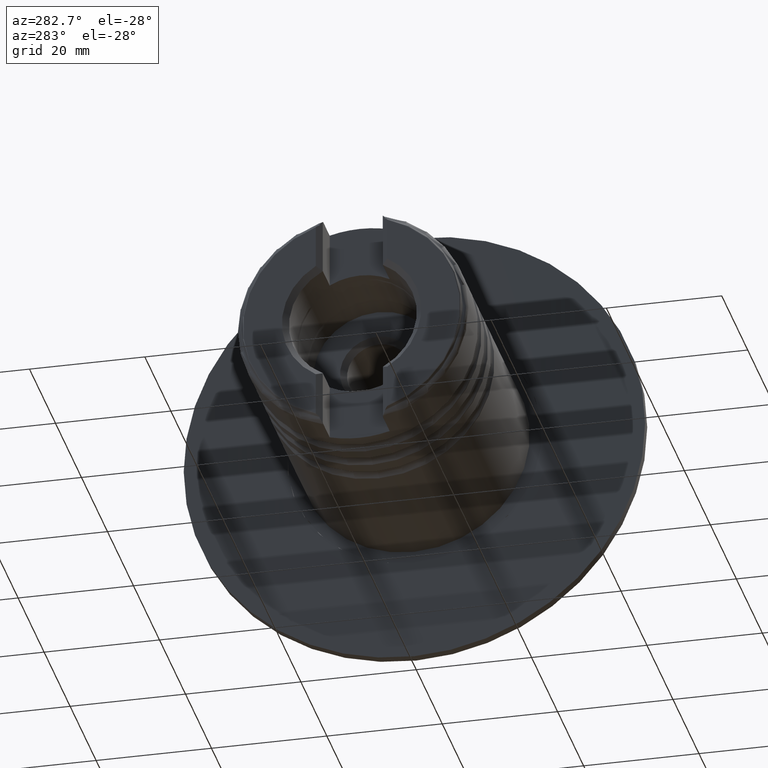
[diagram: clean part render]
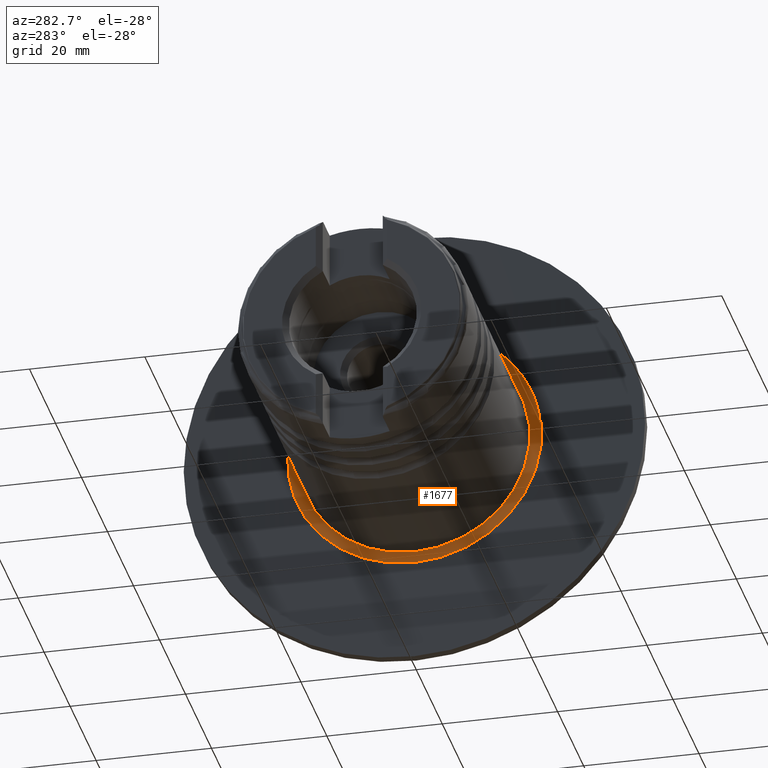
[diagram: same view with one face highlighted and labeled with its STEP entity id]
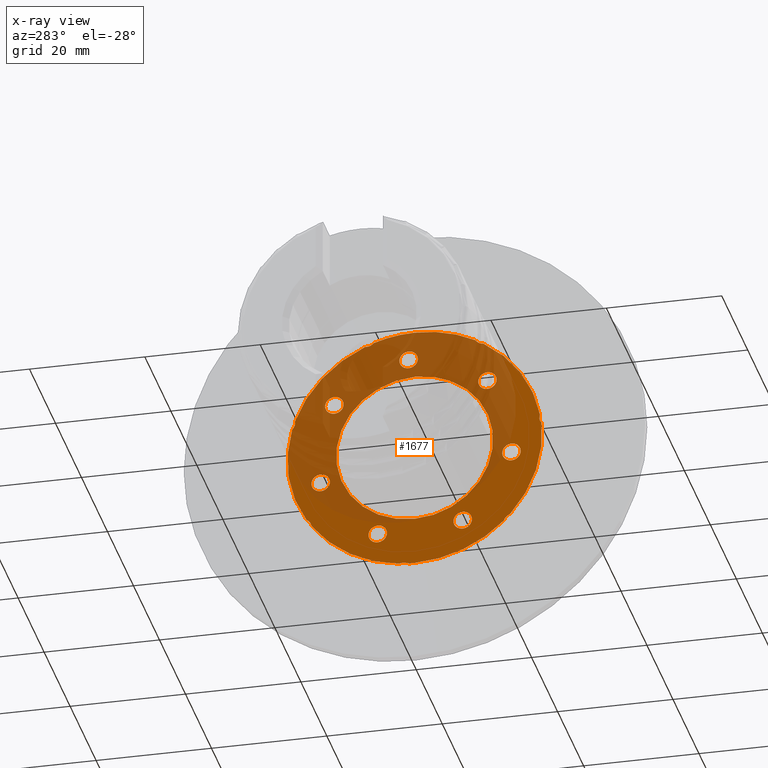
[diagram: x-ray of the same camera — body ghosted, the highlighted face saturated]
A machine part, auxiliary view. The second image highlights one B-rep face of the part: STEP entity #1677.
The next image is the same camera in x-ray: the body ghosted, the highlighted face saturated — about 56% of this face is hidden behind the body in this view.
In plain terms, the highlighted planar face has unit normal (-1, 0, 0).
Its self-contained STEP definition (entity closure, byte-faithful):
#3 = AXIS2_PLACEMENT_3D ( 'NONE', #5247, #3607, #2724 ) ;
#8 = DIRECTION ( 'NONE',  ( -7.893543919357625000E-16, -1.000000000000000000, -1.505845301538993022E-14 ) ) ;
#14 = ORIENTED_EDGE ( 'NONE', *, *, #2405, .F. ) ;
#55 = CARTESIAN_POINT ( 'NONE',  ( -1.200000000000029265, -19.94433317175150933, -20.84568775660764217 ) ) ;
#58 = CIRCLE ( 'NONE', #3820, 22.05936522491092688 ) ;
#61 = CARTESIAN_POINT ( 'NONE',  ( -1.200000000000004841, -8.315805018857782116, -14.82725149474236837 ) ) ;
#77 = ORIENTED_EDGE ( 'NONE', *, *, #725, .T. ) ;
#78 = ORIENTED_EDGE ( 'NONE', *, *, #5464, .T. ) ;
#82 = EDGE_CURVE ( 'NONE', #2205, #5146, #1912, .T. ) ;
#88 = CARTESIAN_POINT ( 'NONE',  ( -1.200000000000004841, -16.77723164056424565, -2.743081930757838460 ) ) ;
#93 = CARTESIAN_POINT ( 'NONE',  ( -1.200000000000022160, -11.78126373550882455, 18.60451648352043108 ) ) ;
#102 = ORIENTED_EDGE ( 'NONE', *, *, #82, .T. ) ;
#144 = DIRECTION ( 'NONE',  ( -1.000000000000000000, 0.0000000000000000000, 0.0000000000000000000 ) ) ;
#149 = DIRECTION ( 'NONE',  ( -7.863886645377447545E-16, -1.000000000000000000, 0.0000000000000000000 ) ) ;
#150 = CARTESIAN_POINT ( 'NONE',  ( -1.200000000000004841, -14.16494530326002987, 11.05065078143131885 ) ) ;
#157 = CARTESIAN_POINT ( 'NONE',  ( -1.200000000000006617, 8.177388263898873078, 21.59005143999080190 ) ) ;
#159 = ORIENTED_EDGE ( 'NONE', *, *, #577, .T. ) ;
#163 = EDGE_LOOP ( 'NONE', ( #2230, #4908 ) ) ;
#182 = EDGE_CURVE ( 'NONE', #1487, #1789, #207, .T. ) ;
#196 = DIRECTION ( 'NONE',  ( -1.000000000000000000, 7.861527457316623400E-16, -0.0000000000000000000 ) ) ;
#207 = CIRCLE ( 'NONE', #5340, 1.599999999999997868 ) ;
#227 = ORIENTED_EDGE ( 'NONE', *, *, #1449, .T. ) ;
#242 = AXIS2_PLACEMENT_3D ( 'NONE', #4059, #1520, #272 ) ;
#243 = DIRECTION ( 'NONE',  ( -7.863886645377447545E-16, -1.000000000000000000, 0.0000000000000000000 ) ) ;
#245 = FACE_BOUND ( 'NONE', #2635, .T. ) ;
#246 = CARTESIAN_POINT ( 'NONE',  ( -1.200000000000013500, 0.0000000000000000000, 0.0000000000000000000 ) ) ;
#255 = DIRECTION ( 'NONE',  ( 0.0000000000000000000, -0.9749279121818226201, -0.2225209339563181121 ) ) ;
#267 = VERTEX_POINT ( 'NONE', #980 ) ;
#271 = ORIENTED_EDGE ( 'NONE', *, *, #2592, .T. ) ;
#272 = DIRECTION ( 'NONE',  ( -7.863886645377447545E-16, -1.000000000000000000, 0.0000000000000000000 ) ) ;
#275 = AXIS2_PLACEMENT_3D ( 'NONE', #2613, #3457, #929 ) ;
#347 = CARTESIAN_POINT ( 'NONE',  ( -1.200000000000026601, -16.58864136329679084, -14.54072115976124557 ) ) ;
#357 = CIRCLE ( 'NONE', #3, 1.599999999999997202 ) ;
#360 = DIRECTION ( 'NONE',  ( 0.0000000000000000000, 0.4338837391175651148, -0.9009688679024157043 ) ) ;
#370 = EDGE_CURVE ( 'NONE', #3175, #1274, #3159, .T. ) ;
#380 = CIRCLE ( 'NONE', #5115, 1.250000000000004885 ) ;
#391 = CARTESIAN_POINT ( 'NONE',  ( -1.200000000000025269, -16.05434978265445878, -14.85558754599113307 ) ) ;
#392 = ORIENTED_EDGE ( 'NONE', *, *, #3710, .T. ) ;
#395 = VERTEX_POINT ( 'NONE', #3847 ) ;
#402 = VERTEX_POINT ( 'NONE', #2919 ) ;
#406 = DIRECTION ( 'NONE',  ( 0.0000000000000000000, -0.7818314824680312469, 0.6234898018587315960 ) ) ;
#414 = DIRECTION ( 'NONE',  ( 0.0000000000000000000, 0.0000000000000000000, 1.000000000000000000 ) ) ;
#484 = ORIENTED_EDGE ( 'NONE', *, *, #5456, .T. ) ;
#486 = DIRECTION ( 'NONE',  ( 1.000000000000000000, -7.861527457316623400E-16, 0.0000000000000000000 ) ) ;
#491 = VERTEX_POINT ( 'NONE', #2167 ) ;
#511 = DIRECTION ( 'NONE',  ( 1.000000000000000000, -7.861527457316623400E-16, 0.0000000000000000000 ) ) ;
#526 = VERTEX_POINT ( 'NONE', #4846 ) ;
#577 = EDGE_CURVE ( 'NONE', #4039, #1967, #5058, .T. ) ;
#637 = VERTEX_POINT ( 'NONE', #3233 ) ;
#644 = CARTESIAN_POINT ( 'NONE',  ( -1.200000000000021494, -10.91069804274972732, 18.95751293024381212 ) ) ;
#664 = CARTESIAN_POINT ( 'NONE',  ( -1.200000000000004841, 4.847707734066346141, -15.39016476804509281 ) ) ;
#670 = AXIS2_PLACEMENT_3D ( 'NONE', #1950, #1528, #3576 ) ;
#688 = VERTEX_POINT ( 'NONE', #4580 ) ;
#701 = AXIS2_PLACEMENT_3D ( 'NONE', #2146, #3375, #406 ) ;
#713 = CIRCLE ( 'NONE', #275, 1.250000000000004663 ) ;
#717 = VERTEX_POINT ( 'NONE', #93 ) ;
#725 = EDGE_CURVE ( 'NONE', #5335, #950, #4809, .T. ) ;
#733 = DIRECTION ( 'NONE',  ( 1.000000000000000000, -7.861527457316623400E-16, 0.0000000000000000000 ) ) ;
#751 = ORIENTED_EDGE ( 'NONE', *, *, #4022, .F. ) ;
#752 = ORIENTED_EDGE ( 'NONE', *, *, #3027, .T. ) ;
#769 = CARTESIAN_POINT ( 'NONE',  ( -1.200000000000013500, 0.0000000000000000000, 0.0000000000000000000 ) ) ;
#797 = ORIENTED_EDGE ( 'NONE', *, *, #3092, .T. ) ;
#823 = VERTEX_POINT ( 'NONE', #1411 ) ;
#839 = AXIS2_PLACEMENT_3D ( 'NONE', #2207, #2967, #3058 ) ;
#848 = CIRCLE ( 'NONE', #2063, 7.142357545004237807 ) ;
#886 = AXIS2_PLACEMENT_3D ( 'NONE', #3663, #1134, #2018 ) ;
#912 = DIRECTION ( 'NONE',  ( 1.000000000000000000, -7.861527457316623400E-16, 0.0000000000000000000 ) ) ;
#914 = CIRCLE ( 'NONE', #1702, 1.599999999999997646 ) ;
#915 = DIRECTION ( 'NONE',  ( 0.0000000000000000000, 0.4338837391175651148, -0.9009688679024157043 ) ) ;
#929 = DIRECTION ( 'NONE',  ( -8.673617379884002932E-16, -1.000000000000000000, 1.387778780781440548E-15 ) ) ;
#934 = VERTEX_POINT ( 'NONE', #1156 ) ;
#942 = ORIENTED_EDGE ( 'NONE', *, *, #3869, .F. ) ;
#945 = DIRECTION ( 'NONE',  ( -1.000000000000000000, 7.861527457316623400E-16, -0.0000000000000000000 ) ) ;
#950 = VERTEX_POINT ( 'NONE', #4858 ) ;
#970 = CARTESIAN_POINT ( 'NONE',  ( -1.200000000000013500, 0.0000000000000000000, 0.0000000000000000000 ) ) ;
#971 = EDGE_CURVE ( 'NONE', #2488, #5166, #3213, .T. ) ;
#978 = DIRECTION ( 'NONE',  ( -1.000000000000000000, 7.861527457316623400E-16, -0.0000000000000000000 ) ) ;
#979 = VERTEX_POINT ( 'NONE', #2303 ) ;
#980 = CARTESIAN_POINT ( 'NONE',  ( -1.199999999999998845, 18.05555585814493114, -12.34615449983647473 ) ) ;
#983 = CARTESIAN_POINT ( 'NONE',  ( -1.199999999999997069, 20.91006721983055172, 6.418700580537457512 ) ) ;
#985 = DIRECTION ( 'NONE',  ( 1.000000000000000000, -7.861527457316623400E-16, 0.0000000000000000000 ) ) ;
#994 = DIRECTION ( 'NONE',  ( -8.673617379884002932E-16, -1.000000000000000000, 0.0000000000000000000 ) ) ;
#1040 = VERTEX_POINT ( 'NONE', #2002 ) ;
#1057 = CIRCLE ( 'NONE', #1633, 1.599999999999997646 ) ;
#1073 = CARTESIAN_POINT ( 'NONE',  ( -1.200000000000022160, -11.78126373550882455, 19.85451648352043463 ) ) ;
#1076 = CIRCLE ( 'NONE', #4231, 1.250000000000004663 ) ;
#1089 = CARTESIAN_POINT ( 'NONE',  ( -1.200000000000004841, 16.30594204255886126, -4.807936574530843110 ) ) ;
#1120 = DIRECTION ( 'NONE',  ( -8.673617379884001945E-16, -1.000000000000000000, 5.551115123125761403E-15 ) ) ;
#1123 = EDGE_CURVE ( 'NONE', #1926, #4761, #848, .T. ) ;
#1133 = ORIENTED_EDGE ( 'NONE', *, *, #3181, .F. ) ;
#1134 = DIRECTION ( 'NONE',  ( 1.000000000000000000, -7.861527457316623400E-16, 0.0000000000000000000 ) ) ;
#1156 = CARTESIAN_POINT ( 'NONE',  ( -1.200000000000004841, 13.92558475291284736, 11.35079941796780112 ) ) ;
#1158 = EDGE_CURVE ( 'NONE', #1806, #267, #713, .T. ) ;
#1192 = DIRECTION ( 'NONE',  ( 0.0000000000000000000, -0.9749279121818226201, -0.2225209339563181121 ) ) ;
#1195 = DIRECTION ( 'NONE',  ( 0.0000000000000000000, -0.7818314824680312469, 0.6234898018587315960 ) ) ;
#1196 = CIRCLE ( 'NONE', #2891, 13.60000000000001741 ) ;
#1199 = AXIS2_PLACEMENT_3D ( 'NONE', #3412, #912, #3880 ) ;
#1268 = EDGE_LOOP ( 'NONE', ( #2239, #3712 ) ) ;
#1274 = VERTEX_POINT ( 'NONE', #2508 ) ;
#1287 = AXIS2_PLACEMENT_3D ( 'NONE', #1368, #4317, #4385 ) ;
#1299 = AXIS2_PLACEMENT_3D ( 'NONE', #3343, #3748, #414 ) ;
#1313 = EDGE_CURVE ( 'NONE', #267, #402, #2219, .T. ) ;
#1323 = DIRECTION ( 'NONE',  ( -1.000000000000000000, 0.0000000000000000000, 0.0000000000000000000 ) ) ;
#1354 = CARTESIAN_POINT ( 'NONE',  ( -1.200000000000004841, 6.407592393557265176, -15.74619826237518083 ) ) ;
#1368 = CARTESIAN_POINT ( 'NONE',  ( -1.200000000000036149, -28.73290329927412046, 2.596033841530536179 ) ) ;
#1379 = FACE_BOUND ( 'NONE', #3495, .T. ) ;
#1384 = CIRCLE ( 'NONE', #2036, 1.599999999999997868 ) ;
#1391 = CARTESIAN_POINT ( 'NONE',  ( -1.200000000000013500, 0.0000000000000000000, 0.0000000000000000000 ) ) ;
#1396 = ORIENTED_EDGE ( 'NONE', *, *, #4724, .F. ) ;
#1411 = CARTESIAN_POINT ( 'NONE',  ( -1.200000000000021272, -10.48483495267685228, 19.40834434312044721 ) ) ;
#1449 = EDGE_CURVE ( 'NONE', #4607, #823, #2529, .T. ) ;
#1470 = DIRECTION ( 'NONE',  ( 1.000000000000000000, -7.861527457316623400E-16, 0.0000000000000000000 ) ) ;
#1479 = AXIS2_PLACEMENT_3D ( 'NONE', #2932, #2492, #360 ) ;
#1487 = VERTEX_POINT ( 'NONE', #150 ) ;
#1503 = DIRECTION ( 'NONE',  ( -1.000000000000000000, 7.861527457316623400E-16, -0.0000000000000000000 ) ) ;
#1507 = FACE_BOUND ( 'NONE', #1268, .T. ) ;
#1509 = CARTESIAN_POINT ( 'NONE',  ( -1.200000000000004841, -12.60506064376911617, 11.40668427576142818 ) ) ;
#1511 = CIRCLE ( 'NONE', #3741, 1.250000000000004663 ) ;
#1516 = CIRCLE ( 'NONE', #3022, 1.599999999999997646 ) ;
#1520 = DIRECTION ( 'NONE',  ( -1.000000000000000000, 7.861527457316623400E-16, -0.0000000000000000000 ) ) ;
#1528 = DIRECTION ( 'NONE',  ( -1.000000000000000000, 7.861527457316623400E-16, -0.0000000000000000000 ) ) ;
#1541 = EDGE_CURVE ( 'NONE', #823, #3594, #2393, .T. ) ;
#1566 = FACE_BOUND ( 'NONE', #3979, .T. ) ;
#1576 = DIRECTION ( 'NONE',  ( -1.000000000000000000, -0.0000000000000000000, 0.0000000000000000000 ) ) ;
#1583 = CARTESIAN_POINT ( 'NONE',  ( -1.200000000000004841, -12.60506064376911617, 11.40668427576142818 ) ) ;
#1587 = CARTESIAN_POINT ( 'NONE',  ( -1.199999999999991074, 27.01382822713573262, 10.12779384795199000 ) ) ;
#1588 = AXIS2_PLACEMENT_3D ( 'NONE', #4091, #4072, #1195 ) ;
#1633 = AXIS2_PLACEMENT_3D ( 'NONE', #4750, #144, #4803 ) ;
#1677 = ADVANCED_FACE ( 'NONE', ( #245, #2333, #1507, #1379, #5242, #2721, #2664, #1566, #2838 ), #1976, .T. ) ;
#1702 = AXIS2_PLACEMENT_3D ( 'NONE', #1089, #1576, #4567 ) ;
#1763 = CARTESIAN_POINT ( 'NONE',  ( -1.200000000000027489, -11.84979350285215105, 18.60639642880298794 ) ) ;
#1789 = VERTEX_POINT ( 'NONE', #2958 ) ;
#1790 = ORIENTED_EDGE ( 'NONE', *, *, #1313, .T. ) ;
#1793 = DIRECTION ( 'NONE',  ( -8.673617379884002932E-16, -1.000000000000000000, -6.938893903907202345E-15 ) ) ;
#1806 = VERTEX_POINT ( 'NONE', #5375 ) ;
#1848 = AXIS2_PLACEMENT_3D ( 'NONE', #1073, #1470, #2266 ) ;
#1875 = DIRECTION ( 'NONE',  ( -8.673617379884002932E-16, -1.000000000000000000, 0.0000000000000000000 ) ) ;
#1878 = CARTESIAN_POINT ( 'NONE',  ( -1.200000000000030598, -21.71124229719788090, 3.903530714414233938 ) ) ;
#1901 = EDGE_CURVE ( 'NONE', #3863, #934, #4854, .T. ) ;
#1912 = CIRCLE ( 'NONE', #839, 13.60000000000001741 ) ;
#1926 = VERTEX_POINT ( 'NONE', #391 ) ;
#1950 = CARTESIAN_POINT ( 'NONE',  ( -1.200000000000013500, 0.0000000000000000000, 0.0000000000000000000 ) ) ;
#1952 = DIRECTION ( 'NONE',  ( 1.000000000000000000, -7.861527457316623400E-16, 0.0000000000000000000 ) ) ;
#1967 = VERTEX_POINT ( 'NONE', #1763 ) ;
#1970 = CARTESIAN_POINT ( 'NONE',  ( -1.200000000000012612, 1.665519646840400618E-15, -13.60000000000000675 ) ) ;
#1976 = PLANE ( 'NONE',  #4857 ) ;
#2002 = CARTESIAN_POINT ( 'NONE',  ( -1.200000000000004841, 7.967477053048184210, -16.10223175670526530 ) ) ;
#2012 = CIRCLE ( 'NONE', #2283, 1.250000000000004663 ) ;
#2018 = DIRECTION ( 'NONE',  ( -7.893543919357621056E-16, -1.000000000000000000, 0.0000000000000000000 ) ) ;
#2036 = AXIS2_PLACEMENT_3D ( 'NONE', #1583, #3682, #1192 ) ;
#2058 = AXIS2_PLACEMENT_3D ( 'NONE', #3250, #733, #4035 ) ;
#2063 = AXIS2_PLACEMENT_3D ( 'NONE', #55, #486, #3935 ) ;
#2113 = AXIS2_PLACEMENT_3D ( 'NONE', #4331, #511, #1793 ) ;
#2146 = CARTESIAN_POINT ( 'NONE',  ( -1.200000000000004841, 1.058978114162429041, 16.96698456867704863 ) ) ;
#2165 = EDGE_CURVE ( 'NONE', #3911, #5335, #4265, .T. ) ;
#2167 = CARTESIAN_POINT ( 'NONE',  ( -1.200000000000011280, 2.603282183109349557, -21.90521663899069793 ) ) ;
#2173 = ORIENTED_EDGE ( 'NONE', *, *, #5014, .T. ) ;
#2200 = CARTESIAN_POINT ( 'NONE',  ( -1.200000000000006617, 7.158841100158735316, 20.86544004397433483 ) ) ;
#2205 = VERTEX_POINT ( 'NONE', #4880 ) ;
#2207 = CARTESIAN_POINT ( 'NONE',  ( -1.200000000000012612, 0.0000000000000000000, 0.0000000000000000000 ) ) ;
#2208 = CARTESIAN_POINT ( 'NONE',  ( -1.200000000000013500, 0.0000000000000000000, 0.0000000000000000000 ) ) ;
#2219 = CIRCLE ( 'NONE', #4992, 7.142357545004234254 ) ;
#2230 = ORIENTED_EDGE ( 'NONE', *, *, #182, .F. ) ;
#2232 = DIRECTION ( 'NONE',  ( -7.863886645377447545E-16, -1.000000000000000000, 0.0000000000000000000 ) ) ;
#2239 = ORIENTED_EDGE ( 'NONE', *, *, #2887, .F. ) ;
#2252 = DIRECTION ( 'NONE',  ( 1.000000000000000000, -7.861527457316623400E-16, 0.0000000000000000000 ) ) ;
#2254 = VERTEX_POINT ( 'NONE', #4430 ) ;
#2266 = DIRECTION ( 'NONE',  ( -8.673617379884002932E-16, -1.000000000000000000, 1.110223024625152438E-14 ) ) ;
#2283 = AXIS2_PLACEMENT_3D ( 'NONE', #3513, #985, #2287 ) ;
#2287 = DIRECTION ( 'NONE',  ( -8.673617379884002932E-16, -1.000000000000000000, 0.0000000000000000000 ) ) ;
#2288 = EDGE_CURVE ( 'NONE', #526, #2882, #4784, .T. ) ;
#2303 = CARTESIAN_POINT ( 'NONE',  ( -1.200000000000012168, 1.025544863782607674, -22.03551342397945234 ) ) ;
#2333 = FACE_BOUND ( 'NONE', #2365, .T. ) ;
#2344 = CIRCLE ( 'NONE', #2058, 7.142357545004236030 ) ;
#2345 = EDGE_CURVE ( 'NONE', #402, #491, #2834, .T. ) ;
#2365 = EDGE_LOOP ( 'NONE', ( #3225, #942 ) ) ;
#2384 = CARTESIAN_POINT ( 'NONE',  ( -1.200000000000013500, -5.114091088966276544E-30, -22.05936522491092688 ) ) ;
#2393 = CIRCLE ( 'NONE', #5278, 22.05936522491092688 ) ;
#2405 = EDGE_CURVE ( 'NONE', #2877, #637, #5290, .T. ) ;
#2431 = AXIS2_PLACEMENT_3D ( 'NONE', #5317, #1503, #4485 ) ;
#2468 = DIRECTION ( 'NONE',  ( -7.893543919357625000E-16, -1.000000000000000000, -9.715130977670924442E-16 ) ) ;
#2470 = CARTESIAN_POINT ( 'NONE',  ( -1.200000000000004841, 6.407592393557265176, -15.74619826237518083 ) ) ;
#2484 = ORIENTED_EDGE ( 'NONE', *, *, #1901, .F. ) ;
#2486 = CARTESIAN_POINT ( 'NONE',  ( -1.200000000000006839, 8.018871477344900356, 20.35014320613613137 ) ) ;
#2488 = VERTEX_POINT ( 'NONE', #983 ) ;
#2492 = DIRECTION ( 'NONE',  ( -1.000000000000000000, 0.0000000000000000000, 0.0000000000000000000 ) ) ;
#2494 = ORIENTED_EDGE ( 'NONE', *, *, #5391, .T. ) ;
#2495 = DIRECTION ( 'NONE',  ( -7.812633301733772206E-16, -1.000000000000000000, 0.0000000000000000000 ) ) ;
#2508 = CARTESIAN_POINT ( 'NONE',  ( -1.200000000000004841, 2.309908486111277526, 15.96940088570307914 ) ) ;
#2529 = CIRCLE ( 'NONE', #886, 7.142357545004237807 ) ;
#2530 = DIRECTION ( 'NONE',  ( -1.000000000000000000, -0.0000000000000000000, 0.0000000000000000000 ) ) ;
#2553 = DIRECTION ( 'NONE',  ( 0.0000000000000000000, 0.7818314824680221431, 0.6234898018587431423 ) ) ;
#2577 = ORIENTED_EDGE ( 'NONE', *, *, #3070, .T. ) ;
#2592 = EDGE_CURVE ( 'NONE', #3526, #688, #3724, .T. ) ;
#2613 = CARTESIAN_POINT ( 'NONE',  ( -1.199999999999997957, 19.22910370048217388, -12.77660247781478198 ) ) ;
#2626 = DIRECTION ( 'NONE',  ( -7.863886645377447545E-16, -1.000000000000000000, 0.0000000000000000000 ) ) ;
#2635 = EDGE_LOOP ( 'NONE', ( #1396, #4032 ) ) ;
#2656 = CIRCLE ( 'NONE', #1848, 1.250000000000004663 ) ;
#2664 = FACE_BOUND ( 'NONE', #2742, .T. ) ;
#2698 = DIRECTION ( 'NONE',  ( 1.000000000000000000, -7.861527457316623400E-16, 0.0000000000000000000 ) ) ;
#2708 = CIRCLE ( 'NONE', #4986, 1.599999999999998979 ) ;
#2721 = FACE_BOUND ( 'NONE', #3238, .T. ) ;
#2724 = DIRECTION ( 'NONE',  ( 0.0000000000000000000, 0.0000000000000000000, 1.000000000000000000 ) ) ;
#2725 = AXIS2_PLACEMENT_3D ( 'NONE', #2470, #4213, #3286 ) ;
#2733 = CIRCLE ( 'NONE', #2973, 22.05936522491092688 ) ;
#2742 = EDGE_LOOP ( 'NONE', ( #3784, #2484 ) ) ;
#2761 = ORIENTED_EDGE ( 'NONE', *, *, #3080, .T. ) ;
#2799 = CARTESIAN_POINT ( 'NONE',  ( -1.200000000000029710, -21.62428939897386826, 3.289488755088004535 ) ) ;
#2823 = ORIENTED_EDGE ( 'NONE', *, *, #1123, .T. ) ;
#2834 = CIRCLE ( 'NONE', #2431, 22.05936522491092688 ) ;
#2836 = DIRECTION ( 'NONE',  ( -7.861527457316623400E-16, -1.000000000000000000, 0.0000000000000000000 ) ) ;
#2838 = FACE_OUTER_BOUND ( 'NONE', #5357, .T. ) ;
#2877 = VERTEX_POINT ( 'NONE', #5004 ) ;
#2882 = VERTEX_POINT ( 'NONE', #2900 ) ;
#2887 = EDGE_CURVE ( 'NONE', #2882, #526, #2708, .T. ) ;
#2891 = AXIS2_PLACEMENT_3D ( 'NONE', #2949, #2252, #2495 ) ;
#2900 = CARTESIAN_POINT ( 'NONE',  ( -1.200000000000004841, -7.621591036269678376, -16.26880168338623278 ) ) ;
#2919 = CARTESIAN_POINT ( 'NONE',  ( -1.199999999999998179, 17.86747489113111342, -12.93711463738374690 ) ) ;
#2932 = CARTESIAN_POINT ( 'NONE',  ( -1.200000000000004841, -8.315805018857782116, -14.82725149474236837 ) ) ;
#2949 = CARTESIAN_POINT ( 'NONE',  ( -1.200000000000012612, 0.0000000000000000000, 0.0000000000000000000 ) ) ;
#2958 = CARTESIAN_POINT ( 'NONE',  ( -1.200000000000004841, -11.04517598427820069, 11.76271777009153574 ) ) ;
#2967 = DIRECTION ( 'NONE',  ( 1.000000000000000000, -7.861527457316623400E-16, 0.0000000000000000000 ) ) ;
#2970 = DIRECTION ( 'NONE',  ( 1.000000000000000000, -7.861527457316623400E-16, 0.0000000000000000000 ) ) ;
#2973 = AXIS2_PLACEMENT_3D ( 'NONE', #2208, #196, #243 ) ;
#2976 = DIRECTION ( 'NONE',  ( 0.0000000000000000000, -0.4338837391175524028, -0.9009688679024218105 ) ) ;
#2979 = DIRECTION ( 'NONE',  ( 0.0000000000000000000, 0.9749279121818259508, -0.2225209339563039845 ) ) ;
#2999 = DIRECTION ( 'NONE',  ( -1.000000000000000000, 0.0000000000000000000, 0.0000000000000000000 ) ) ;
#3017 = DIRECTION ( 'NONE',  ( -1.000000000000000000, 0.0000000000000000000, 0.0000000000000000000 ) ) ;
#3022 = AXIS2_PLACEMENT_3D ( 'NONE', #5092, #2530, #2553 ) ;
#3027 = EDGE_CURVE ( 'NONE', #688, #1926, #1076, .T. ) ;
#3058 = DIRECTION ( 'NONE',  ( -7.812633301733772206E-16, -1.000000000000000000, 0.0000000000000000000 ) ) ;
#3063 = CIRCLE ( 'NONE', #1287, 7.142357545004234254 ) ;
#3070 = EDGE_CURVE ( 'NONE', #950, #3452, #3094, .T. ) ;
#3080 = EDGE_CURVE ( 'NONE', #5166, #1806, #4363, .T. ) ;
#3092 = EDGE_CURVE ( 'NONE', #5146, #2205, #1196, .T. ) ;
#3094 = CIRCLE ( 'NONE', #670, 22.05936522491092688 ) ;
#3118 = CARTESIAN_POINT ( 'NONE',  ( -1.200000000000025713, -16.73514449304702723, -15.90392840768713256 ) ) ;
#3159 = CIRCLE ( 'NONE', #701, 1.599999999999997202 ) ;
#3170 = ORIENTED_EDGE ( 'NONE', *, *, #1158, .T. ) ;
#3175 = VERTEX_POINT ( 'NONE', #5338 ) ;
#3180 = ORIENTED_EDGE ( 'NONE', *, *, #370, .F. ) ;
#3181 = EDGE_CURVE ( 'NONE', #1274, #3175, #3756, .T. ) ;
#3183 = ORIENTED_EDGE ( 'NONE', *, *, #4536, .T. ) ;
#3186 = DIRECTION ( 'NONE',  ( -1.000000000000000000, 7.861527457316623400E-16, -0.0000000000000000000 ) ) ;
#3213 = CIRCLE ( 'NONE', #3542, 7.142357545004234254 ) ;
#3225 = ORIENTED_EDGE ( 'NONE', *, *, #3738, .F. ) ;
#3233 = CARTESIAN_POINT ( 'NONE',  ( -1.200000000000004841, -16.08301765797616056, -1.301531742113965606 ) ) ;
#3238 = EDGE_LOOP ( 'NONE', ( #3180, #1133 ) ) ;
#3250 = CARTESIAN_POINT ( 'NONE',  ( -1.200000000000010170, 3.862726624353945759, -28.59018129948315945 ) ) ;
#3280 = EDGE_CURVE ( 'NONE', #3662, #979, #2344, .T. ) ;
#3286 = DIRECTION ( 'NONE',  ( 0.0000000000000000000, 0.9749279121818259508, -0.2225209339563039845 ) ) ;
#3290 = VERTEX_POINT ( 'NONE', #2799 ) ;
#3343 = CARTESIAN_POINT ( 'NONE',  ( -1.200000000000004841, 13.92558475291284736, 9.750799417967803251 ) ) ;
#3359 = EDGE_CURVE ( 'NONE', #4761, #2254, #2733, .T. ) ;
#3365 = CARTESIAN_POINT ( 'NONE',  ( -1.199999999999992628, 24.76107448705758785, -14.80568519043260345 ) ) ;
#3367 = DIRECTION ( 'NONE',  ( -7.863886645377447545E-16, -1.000000000000000000, 0.0000000000000000000 ) ) ;
#3375 = DIRECTION ( 'NONE',  ( -1.000000000000000000, 0.0000000000000000000, -0.0000000000000000000 ) ) ;
#3412 = CARTESIAN_POINT ( 'NONE',  ( -1.200000000000006617, 8.924618330507765762, 27.43483754948394449 ) ) ;
#3446 = CARTESIAN_POINT ( 'NONE',  ( -1.200000000000030820, -22.86838384809460223, 3.168125656631372689 ) ) ;
#3452 = VERTEX_POINT ( 'NONE', #5427 ) ;
#3457 = DIRECTION ( 'NONE',  ( 1.000000000000000000, -7.861527457316623400E-16, 0.0000000000000000000 ) ) ;
#3495 = EDGE_LOOP ( 'NONE', ( #14, #751 ) ) ;
#3505 = CARTESIAN_POINT ( 'NONE',  ( -1.200000000000013500, 0.0000000000000000000, 0.0000000000000000000 ) ) ;
#3513 = CARTESIAN_POINT ( 'NONE',  ( -1.200000000000022160, -11.78126373550882455, 19.85451648352043463 ) ) ;
#3526 = VERTEX_POINT ( 'NONE', #2384 ) ;
#3532 = ORIENTED_EDGE ( 'NONE', *, *, #3280, .T. ) ;
#3539 = AXIS2_PLACEMENT_3D ( 'NONE', #970, #3918, #149 ) ;
#3542 = AXIS2_PLACEMENT_3D ( 'NONE', #1587, #3688, #2468 ) ;
#3544 = CIRCLE ( 'NONE', #5121, 22.05936522491092688 ) ;
#3566 = ORIENTED_EDGE ( 'NONE', *, *, #3359, .T. ) ;
#3576 = DIRECTION ( 'NONE',  ( -7.863886645377447545E-16, -1.000000000000000000, 0.0000000000000000000 ) ) ;
#3587 = ORIENTED_EDGE ( 'NONE', *, *, #4129, .T. ) ;
#3594 = VERTEX_POINT ( 'NONE', #4436 ) ;
#3607 = DIRECTION ( 'NONE',  ( -1.000000000000000000, -0.0000000000000000000, -0.0000000000000000000 ) ) ;
#3624 = DIRECTION ( 'NONE',  ( -7.863886645377447545E-16, -1.000000000000000000, 0.0000000000000000000 ) ) ;
#3633 = ORIENTED_EDGE ( 'NONE', *, *, #2345, .T. ) ;
#3639 = DIRECTION ( 'NONE',  ( -1.000000000000000000, 0.0000000000000000000, 0.0000000000000000000 ) ) ;
#3662 = VERTEX_POINT ( 'NONE', #4694 ) ;
#3663 = CARTESIAN_POINT ( 'NONE',  ( -1.200000000000025713, -15.88501119802953454, 24.08288900755649564 ) ) ;
#3682 = DIRECTION ( 'NONE',  ( -1.000000000000000000, 0.0000000000000000000, 0.0000000000000000000 ) ) ;
#3688 = DIRECTION ( 'NONE',  ( 1.000000000000000000, -7.861527457316623400E-16, 0.0000000000000000000 ) ) ;
#3710 = EDGE_CURVE ( 'NONE', #979, #3526, #58, .T. ) ;
#3712 = ORIENTED_EDGE ( 'NONE', *, *, #2288, .F. ) ;
#3720 = DIRECTION ( 'NONE',  ( -1.000000000000000000, 7.861527457316623400E-16, -0.0000000000000000000 ) ) ;
#3724 = CIRCLE ( 'NONE', #3539, 22.05936522491092688 ) ;
#3738 = EDGE_CURVE ( 'NONE', #1040, #4156, #3960, .T. ) ;
#3740 = CARTESIAN_POINT ( 'NONE',  ( -1.200000000000004841, 17.55687241450769420, -3.810352891556855859 ) ) ;
#3741 = AXIS2_PLACEMENT_3D ( 'NONE', #3446, #2970, #4706 ) ;
#3748 = DIRECTION ( 'NONE',  ( -1.000000000000000000, -0.0000000000000000000, -0.0000000000000000000 ) ) ;
#3756 = CIRCLE ( 'NONE', #1588, 1.599999999999997202 ) ;
#3775 = EDGE_CURVE ( 'NONE', #395, #4748, #1516, .T. ) ;
#3784 = ORIENTED_EDGE ( 'NONE', *, *, #4391, .F. ) ;
#3818 = DIRECTION ( 'NONE',  ( 1.000000000000000000, -7.861527457316623400E-16, 0.0000000000000000000 ) ) ;
#3820 = AXIS2_PLACEMENT_3D ( 'NONE', #769, #3720, #3367 ) ;
#3847 = CARTESIAN_POINT ( 'NONE',  ( -1.200000000000004841, 15.05501167061002654, -5.805520257504831250 ) ) ;
#3863 = VERTEX_POINT ( 'NONE', #4259 ) ;
#3869 = EDGE_CURVE ( 'NONE', #4156, #1040, #4671, .T. ) ;
#3880 = DIRECTION ( 'NONE',  ( -7.893543919357623028E-16, -1.000000000000000000, 0.0000000000000000000 ) ) ;
#3911 = VERTEX_POINT ( 'NONE', #2200 ) ;
#3918 = DIRECTION ( 'NONE',  ( -1.000000000000000000, 7.861527457316623400E-16, -0.0000000000000000000 ) ) ;
#3935 = DIRECTION ( 'NONE',  ( -7.893543919357621056E-16, -1.000000000000000000, 0.0000000000000000000 ) ) ;
#3942 = DIRECTION ( 'NONE',  ( 1.000000000000000000, -7.861527457316623400E-16, 0.0000000000000000000 ) ) ;
#3960 = CIRCLE ( 'NONE', #2725, 1.599999999999997868 ) ;
#3978 = ORIENTED_EDGE ( 'NONE', *, *, #2165, .T. ) ;
#3979 = EDGE_LOOP ( 'NONE', ( #102, #797 ) ) ;
#3996 = EDGE_CURVE ( 'NONE', #717, #4607, #2012, .T. ) ;
#4022 = EDGE_CURVE ( 'NONE', #637, #2877, #1057, .T. ) ;
#4032 = ORIENTED_EDGE ( 'NONE', *, *, #3775, .F. ) ;
#4035 = DIRECTION ( 'NONE',  ( -7.893543919357623028E-16, -1.000000000000000000, 2.671661018859503403E-14 ) ) ;
#4039 = VERTEX_POINT ( 'NONE', #1878 ) ;
#4059 = CARTESIAN_POINT ( 'NONE',  ( -1.200000000000013500, 0.0000000000000000000, 0.0000000000000000000 ) ) ;
#4072 = DIRECTION ( 'NONE',  ( -1.000000000000000000, 0.0000000000000000000, -0.0000000000000000000 ) ) ;
#4091 = CARTESIAN_POINT ( 'NONE',  ( -1.200000000000004841, 1.058978114162429041, 16.96698456867704863 ) ) ;
#4128 = DIRECTION ( 'NONE',  ( -1.000000000000000000, 7.861527457316623400E-16, 0.0000000000000000000 ) ) ;
#4129 = EDGE_CURVE ( 'NONE', #491, #3662, #380, .T. ) ;
#4156 = VERTEX_POINT ( 'NONE', #664 ) ;
#4213 = DIRECTION ( 'NONE',  ( -1.000000000000000000, 0.0000000000000000000, 0.0000000000000000000 ) ) ;
#4231 = AXIS2_PLACEMENT_3D ( 'NONE', #3118, #2698, #1875 ) ;
#4248 = EDGE_CURVE ( 'NONE', #1789, #1487, #1384, .T. ) ;
#4259 = CARTESIAN_POINT ( 'NONE',  ( -1.200000000000004841, 13.92558475291284736, 8.150799417967807159 ) ) ;
#4265 = CIRCLE ( 'NONE', #5330, 1.250000000000004663 ) ;
#4317 = DIRECTION ( 'NONE',  ( 1.000000000000000000, -7.861527457316623400E-16, 0.0000000000000000000 ) ) ;
#4331 = CARTESIAN_POINT ( 'NONE',  ( -1.199999999999996181, 21.97830011226928804, 7.067837305358956712 ) ) ;
#4348 = AXIS2_PLACEMENT_3D ( 'NONE', #246, #3186, #3624 ) ;
#4363 = CIRCLE ( 'NONE', #4348, 22.05936522491092688 ) ;
#4372 = ORIENTED_EDGE ( 'NONE', *, *, #1541, .T. ) ;
#4377 = AXIS2_PLACEMENT_3D ( 'NONE', #88, #3017, #2976 ) ;
#4385 = DIRECTION ( 'NONE',  ( -7.893543919357625000E-16, -1.000000000000000000, 0.0000000000000000000 ) ) ;
#4391 = EDGE_CURVE ( 'NONE', #934, #3863, #357, .T. ) ;
#4430 = CARTESIAN_POINT ( 'NONE',  ( -1.200000000000032596, -21.93529190647909743, 2.336356801424460450 ) ) ;
#4436 = CARTESIAN_POINT ( 'NONE',  ( -1.200000000000013500, 2.701493101390959659E-15, 22.05936522491092688 ) ) ;
#4453 = ORIENTED_EDGE ( 'NONE', *, *, #971, .T. ) ;
#4485 = DIRECTION ( 'NONE',  ( -7.863886645377447545E-16, -1.000000000000000000, 0.0000000000000000000 ) ) ;
#4536 = EDGE_CURVE ( 'NONE', #2254, #3290, #1511, .T. ) ;
#4567 = DIRECTION ( 'NONE',  ( 0.0000000000000000000, 0.7818314824680221431, 0.6234898018587431423 ) ) ;
#4580 = CARTESIAN_POINT ( 'NONE',  ( -1.200000000000027489, -15.50306810611603936, -15.69300715042012229 ) ) ;
#4607 = VERTEX_POINT ( 'NONE', #644 ) ;
#4671 = CIRCLE ( 'NONE', #4733, 1.599999999999997868 ) ;
#4694 = CARTESIAN_POINT ( 'NONE',  ( -1.200000000000011946, 1.604842669057549465, -21.81410342617812503 ) ) ;
#4706 = DIRECTION ( 'NONE',  ( -8.673617379884002932E-16, -1.000000000000000000, -1.734723475976800586E-15 ) ) ;
#4722 = CIRCLE ( 'NONE', #2113, 1.250000000000004663 ) ;
#4724 = EDGE_CURVE ( 'NONE', #4748, #395, #914, .T. ) ;
#4733 = AXIS2_PLACEMENT_3D ( 'NONE', #1354, #2999, #2979 ) ;
#4748 = VERTEX_POINT ( 'NONE', #3740 ) ;
#4750 = CARTESIAN_POINT ( 'NONE',  ( -1.200000000000004841, -16.77723164056424565, -2.743081930757838460 ) ) ;
#4761 = VERTEX_POINT ( 'NONE', #347 ) ;
#4784 = CIRCLE ( 'NONE', #1479, 1.599999999999998979 ) ;
#4803 = DIRECTION ( 'NONE',  ( 0.0000000000000000000, -0.4338837391175524028, -0.9009688679024218105 ) ) ;
#4809 = CIRCLE ( 'NONE', #1199, 7.142357545004236030 ) ;
#4846 = CARTESIAN_POINT ( 'NONE',  ( -1.200000000000004841, -9.010019001445886744, -13.38570130609850573 ) ) ;
#4854 = CIRCLE ( 'NONE', #1299, 1.599999999999997202 ) ;
#4857 = AXIS2_PLACEMENT_3D ( 'NONE', #4942, #4128, #2836 ) ;
#4858 = CARTESIAN_POINT ( 'NONE',  ( -1.200000000000006839, 8.636866962865870079, 20.29827882338218359 ) ) ;
#4872 = CARTESIAN_POINT ( 'NONE',  ( -1.200000000000011724, 1.999999999999992228, -23.00000000000000000 ) ) ;
#4880 = CARTESIAN_POINT ( 'NONE',  ( -1.200000000000012612, 0.0000000000000000000, 13.60000000000000675 ) ) ;
#4908 = ORIENTED_EDGE ( 'NONE', *, *, #4248, .F. ) ;
#4942 = CARTESIAN_POINT ( 'NONE',  ( -1.199999999999982192, 39.00000000000000000, 0.0000000000000000000 ) ) ;
#4986 = AXIS2_PLACEMENT_3D ( 'NONE', #61, #1323, #915 ) ;
#4992 = AXIS2_PLACEMENT_3D ( 'NONE', #3365, #3818, #8 ) ;
#5004 = CARTESIAN_POINT ( 'NONE',  ( -1.200000000000004841, -17.47144562315232719, -4.184632119401711314 ) ) ;
#5014 = EDGE_CURVE ( 'NONE', #3452, #2488, #4722, .T. ) ;
#5058 = CIRCLE ( 'NONE', #242, 22.05936522491092688 ) ;
#5092 = CARTESIAN_POINT ( 'NONE',  ( -1.200000000000004841, 16.30594204255886126, -4.807936574530843110 ) ) ;
#5115 = AXIS2_PLACEMENT_3D ( 'NONE', #4872, #1952, #1120 ) ;
#5121 = AXIS2_PLACEMENT_3D ( 'NONE', #3505, #978, #2626 ) ;
#5146 = VERTEX_POINT ( 'NONE', #1970 ) ;
#5166 = VERTEX_POINT ( 'NONE', #5337 ) ;
#5242 = FACE_BOUND ( 'NONE', #163, .T. ) ;
#5247 = CARTESIAN_POINT ( 'NONE',  ( -1.200000000000004841, 13.92558475291284736, 9.750799417967803251 ) ) ;
#5277 = ORIENTED_EDGE ( 'NONE', *, *, #3996, .T. ) ;
#5278 = AXIS2_PLACEMENT_3D ( 'NONE', #1391, #945, #2232 ) ;
#5290 = CIRCLE ( 'NONE', #4377, 1.599999999999997646 ) ;
#5317 = CARTESIAN_POINT ( 'NONE',  ( -1.200000000000013500, 0.0000000000000000000, 0.0000000000000000000 ) ) ;
#5330 = AXIS2_PLACEMENT_3D ( 'NONE', #157, #3942, #994 ) ;
#5335 = VERTEX_POINT ( 'NONE', #2486 ) ;
#5337 = CARTESIAN_POINT ( 'NONE',  ( -1.199999999999995515, 21.25483189539180273, 5.903195340207270547 ) ) ;
#5338 = CARTESIAN_POINT ( 'NONE',  ( -1.200000000000004841, -0.1919522577864187507, 17.96456825165101634 ) ) ;
#5340 = AXIS2_PLACEMENT_3D ( 'NONE', #1509, #3639, #255 ) ;
#5357 = EDGE_LOOP ( 'NONE', ( #484, #159, #78, #5277, #227, #4372, #2494, #3978, #77, #2577, #2173, #4453, #2761, #3170, #1790, #3633, #3587, #3532, #392, #271, #752, #2823, #3566, #3183 ) ) ;
#5375 = CARTESIAN_POINT ( 'NONE',  ( -1.199999999999998401, 18.74930789117468777, -11.62235121341391952 ) ) ;
#5391 = EDGE_CURVE ( 'NONE', #3594, #3911, #3544, .T. ) ;
#5427 = CARTESIAN_POINT ( 'NONE',  ( -1.199999999999994404, 20.77672234100439042, 7.412381728622628785 ) ) ;
#5456 = EDGE_CURVE ( 'NONE', #3290, #4039, #3063, .T. ) ;
#5464 = EDGE_CURVE ( 'NONE', #1967, #717, #2656, .T. ) ;